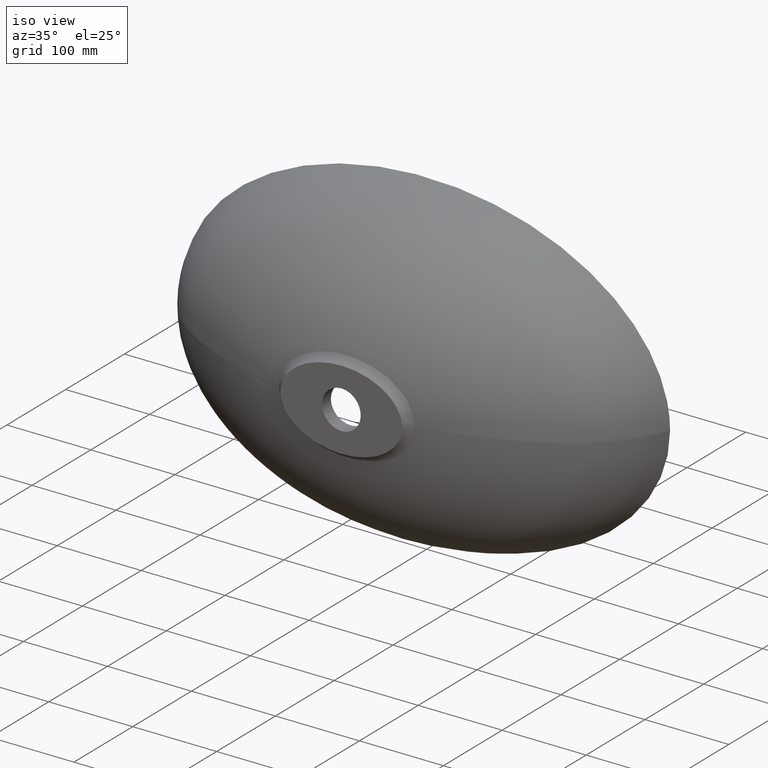
[diagram: clean part render]
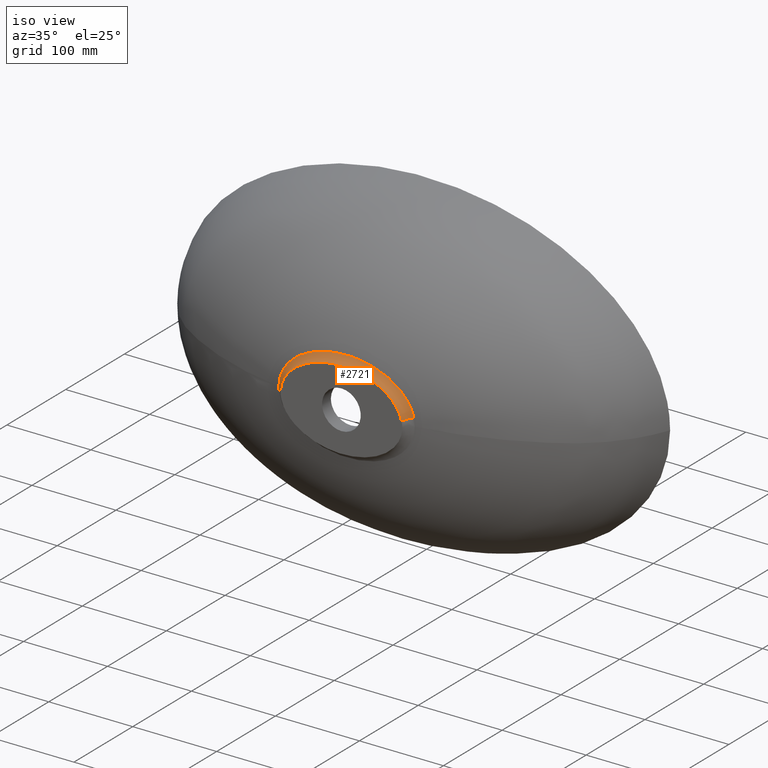
[diagram: same view with one face highlighted and labeled with its STEP entity id]
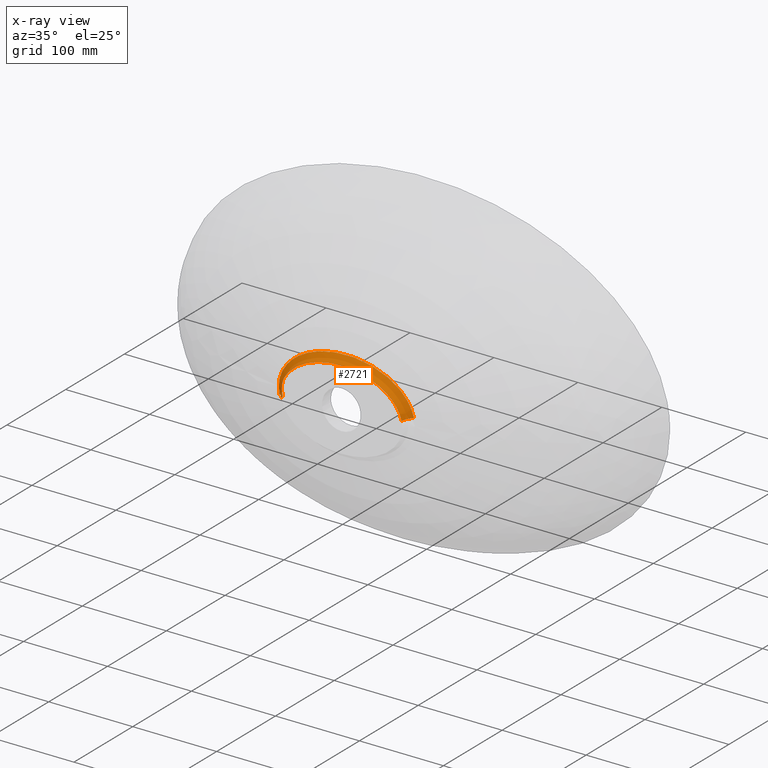
[diagram: x-ray of the same camera — body ghosted, the highlighted face saturated]
A machine part, iso view. The second image highlights one B-rep face of the part: STEP entity #2721.
The next image is the same camera in x-ray: the body ghosted, the highlighted face saturated — about 0% of this face is hidden behind the body in this view.
In plain terms, the highlighted face is a freeform B-spline surface patch.
Its self-contained STEP definition (entity closure, byte-faithful):
#111 = CARTESIAN_POINT ( 'NONE',  ( -57.76840219099133800, -144.9999999999990900, 28.74286792429593300 ) ) ;
#180 = CARTESIAN_POINT ( 'NONE',  ( -68.99613540702560500, -137.0384209324626300, 15.69049869848598900 ) ) ;
#248 = CARTESIAN_POINT ( 'NONE',  ( -21.48527641341252800, -135.3737776091023800, 53.27939157669379000 ) ) ;
#269 = CARTESIAN_POINT ( 'NONE',  ( -31.24889628013767200, -135.4003921669096000, 51.10134904427822300 ) ) ;
#273 = CARTESIAN_POINT ( 'NONE',  ( 66.74979826871857800, -145.0000000000129900, 18.62593711091315300 ) ) ;
#276 = CARTESIAN_POINT ( 'NONE',  ( -4.121749867141546500, -137.1522376728412400, 47.50875371204107700 ) ) ;
#281 = CARTESIAN_POINT ( 'NONE',  ( 0.09990136151083722800, -145.0000000000001100, 47.52025950288384600 ) ) ;
#287 = CARTESIAN_POINT ( 'NONE',  ( 35.66518881696328700, -135.4167835800382400, 49.75192479755023800 ) ) ;
#294 = CARTESIAN_POINT ( 'NONE',  ( 48.25351450540643600, -137.1074618079802600, 35.75339900553067500 ) ) ;
#306 = CARTESIAN_POINT ( 'NONE',  ( 67.36033692101638300, -135.6349497838440100, 30.87650840244744500 ) ) ;
#310 = CARTESIAN_POINT ( 'NONE',  ( 61.39534615579458400, -145.0000000000066200, 25.27441940821577400 ) ) ;
#314 = CARTESIAN_POINT ( 'NONE',  ( 61.71677162060830600, -137.0700529555253700, 25.47824916933039300 ) ) ;
#320 = CARTESIAN_POINT ( 'NONE',  ( 62.39568961167960000, -137.0676118115006000, 24.76867081057740100 ) ) ;
#323 = CARTESIAN_POINT ( 'NONE',  ( 68.14707202708785900, -135.6434693960308100, 30.05945386917327900 ) ) ;
#330 = CARTESIAN_POINT ( 'NONE',  ( 62.06352335316096000, -144.9999999999993700, 24.56526272325201200 ) ) ;
#332 = CARTESIAN_POINT ( 'NONE',  ( 63.34040246312178400, -145.0000000000005400, 23.12657197134214500 ) ) ;
#337 = CARTESIAN_POINT ( 'NONE',  ( 63.69435452095883200, -137.0627086431334500, 23.32791343366232800 ) ) ;
#340 = CARTESIAN_POINT ( 'NONE',  ( -6.666671140644870000, -135.3524187993806200, 55.03892607618850300 ) ) ;
#347 = CARTESIAN_POINT ( 'NONE',  ( 11.74099039740930600, -137.1500910783568700, 46.95027718676112000 ) ) ;
#351 = CARTESIAN_POINT ( 'NONE',  ( 8.546520953824769500, -144.9999999999999400, 47.18722668022632400 ) ) ;
#360 = CARTESIAN_POINT ( 'NONE',  ( 25.19142025147209200, -145.0000000000028700, 44.63444037198594600 ) ) ;
#364 = CARTESIAN_POINT ( 'NONE',  ( 14.90665943941628900, -137.1486254878783200, 46.56888937387519400 ) ) ;
#366 = CARTESIAN_POINT ( 'NONE',  ( 81.43937756057232500, -145.6869386754292500, 9.182762332374272400 ) ) ;
#371 = CARTESIAN_POINT ( 'NONE',  ( 25.24612161508172600, -137.1415035850226600, 44.73055361031743600 ) ) ;
#374 = CARTESIAN_POINT ( 'NONE',  ( 27.05120354373242700, -135.3871726466248300, 52.18340821861745800 ) ) ;
#378 = CARTESIAN_POINT ( 'NONE',  ( 50.01410201119635000, -137.1036213648565100, 34.71555418065338500 ) ) ;
#384 = CARTESIAN_POINT ( 'NONE',  ( 77.15437121182873200, -135.7592965919447700, 16.98060804809679400 ) ) ;
#391 = CARTESIAN_POINT ( 'NONE',  ( 69.66023135320317300, -135.6605098894223100, 28.39081299191124000 ) ) ;
#398 = CARTESIAN_POINT ( 'NONE',  ( 21.12290106580270400, -144.9999999999957400, 45.52672756669683500 ) ) ;
#401 = CARTESIAN_POINT ( 'NONE',  ( 21.16590476096972800, -137.1449450037066000, 45.61351044541775900 ) ) ;
#406 = CARTESIAN_POINT ( 'NONE',  ( 22.65981847253457100, -135.3756275762000000, 53.12627331495276900 ) ) ;
#407 = CARTESIAN_POINT ( 'NONE',  ( 15.92394870537510500, -145.0000000000010200, 46.34397247597171800 ) ) ;
#419 = CARTESIAN_POINT ( 'NONE',  ( 12.77710047153408200, -145.0000000000005100, 46.75941837057761300 ) ) ;
#430 = CARTESIAN_POINT ( 'NONE',  ( 54.09782905553639400, -135.5177364392129700, 41.29457163147324600 ) ) ;
#437 = CARTESIAN_POINT ( 'NONE',  ( 46.07839826312628900, -135.4670964381154200, 45.56039668120963200 ) ) ;
#442 = CARTESIAN_POINT ( 'NONE',  ( 49.82920067796058600, -144.9999999999995700, 34.53808522778889800 ) ) ;
#450 = CARTESIAN_POINT ( 'NONE',  ( 48.08363250697681900, -145.0000000000029800, 35.58190932183390500 ) ) ;
#460 = CARTESIAN_POINT ( 'NONE',  ( 37.09799775858699900, -137.1273880791220800, 41.08750420451662700 ) ) ;
#463 = CARTESIAN_POINT ( 'NONE',  ( 36.99802043483879300, -144.9999999999966500, 40.95605656732352200 ) ) ;
#467 = CARTESIAN_POINT ( 'NONE',  ( 33.12843299421837200, -144.9999999999970400, 42.34902868263954200 ) ) ;
#470 = CARTESIAN_POINT ( 'NONE',  ( 39.88801473062324000, -135.4348307378309100, 48.26413232427020700 ) ) ;
#474 = CARTESIAN_POINT ( 'NONE',  ( 15.95439265211875400, -137.1480605719148400, 46.42202284304537600 ) ) ;
#479 = CARTESIAN_POINT ( 'NONE',  ( 33.21135273579705700, -137.1327332404601700, 42.46765495444253700 ) ) ;
#482 = CARTESIAN_POINT ( 'NONE',  ( 63.23889223343226700, -135.5933905420252800, 34.74264865472555600 ) ) ;
#486 = CARTESIAN_POINT ( 'NONE',  ( 44.61196032396544100, -137.1146888673945600, 37.70245769547897700 ) ) ;
#489 = CARTESIAN_POINT ( 'NONE',  ( 52.14051688200908800, -135.5041454909421100, 42.44041579076185400 ) ) ;
#492 = CARTESIAN_POINT ( 'NONE',  ( 14.87852081885964300, -144.9999999999994000, 46.49245038729075200 ) ) ;
#498 = CARTESIAN_POINT ( 'NONE',  ( 48.11768247370221700, -135.4787473139366800, 44.58016454916995700 ) ) ;
#502 = CARTESIAN_POINT ( 'NONE',  ( 42.62422442911334000, -145.0000000000015900, 38.44909863477387500 ) ) ;
#507 = CARTESIAN_POINT ( 'NONE',  ( 42.75523717256426400, -137.1180323148016400, 38.60100233708259100 ) ) ;
#510 = CARTESIAN_POINT ( 'NONE',  ( 44.46901557833611900, -144.9999999999969300, 37.54388588072519900 ) ) ;
#513 = CARTESIAN_POINT ( 'NONE',  ( 59.61269964118994100, -137.0772770510430400, 27.55549617697827400 ) ) ;
#528 = CARTESIAN_POINT ( 'NONE',  ( 59.71341227963473800, -135.5619325043917600, 37.53551406600994500 ) ) ;
#533 = CARTESIAN_POINT ( 'NONE',  ( 75.49057484280570000, -135.7351685703401600, 20.21074994673590200 ) ) ;
#535 = CARTESIAN_POINT ( 'NONE',  ( 63.95099727483785300, -144.9999999999975800, 22.39514452345439100 ) ) ;
#538 = CARTESIAN_POINT ( 'NONE',  ( 72.48576815120192400, -135.6945327159070000, 24.91615383596656800 ) ) ;
#541 = CARTESIAN_POINT ( 'NONE',  ( 73.76652439366057500, -135.7113243982844300, 23.08839513003595200 ) ) ;
#546 = CARTESIAN_POINT ( 'NONE',  ( 55.01888580714810900, -137.0909848404254800, 31.34388147087616600 ) ) ;
#552 = CARTESIAN_POINT ( 'NONE',  ( 59.32234575477888000, -144.9999999999866100, 27.35230500167262900 ) ) ;
#555 = CARTESIAN_POINT ( 'NONE',  ( 11.71941556397217200, -145.0000000000000000, 46.87805733802457600 ) ) ;
#562 = CARTESIAN_POINT ( 'NONE',  ( 64.93419885008785300, -135.6097045548670500, 33.25725369230711700 ) ) ;
#571 = CARTESIAN_POINT ( 'NONE',  ( 2.211533396561068200, -137.1524479306425500, 47.56329700129258200 ) ) ;
#576 = CARTESIAN_POINT ( 'NONE',  ( 64.31597475023309600, -137.0602396946318300, 22.59487292797777500 ) ) ;
#579 = CARTESIAN_POINT ( 'NONE',  ( 70.38869316036340300, -135.6690550233371900, 27.53724240036149600 ) ) ;
#584 = ORIENTED_EDGE ( 'NONE', *, *, #1887, .F. ) ;
#596 = CARTESIAN_POINT ( 'NONE',  ( 0.1000518057343961600, -137.1525334788698000, 47.58532939791197000 ) ) ;
#599 = CARTESIAN_POINT ( 'NONE',  ( 0.1065809894754284600, -135.3501510732385500, 55.22470587094837700 ) ) ;
#601 = CARTESIAN_POINT ( 'NONE',  ( 2.207555259971072800, -145.0000000000004000, 47.49797454659859900 ) ) ;
#634 = CARTESIAN_POINT ( 'NONE',  ( -4.410086915435715400, -135.3511466946724200, 55.14330890330013800 ) ) ;
#644 = CARTESIAN_POINT ( 'NONE',  ( -4.114371745739130200, -144.9999999999998300, 47.44281049367496900 ) ) ;
#645 = CARTESIAN_POINT ( 'NONE',  ( -29.13462599215172200, -137.1375754273712500, 43.72105419199469600 ) ) ;
#647 = CARTESIAN_POINT ( 'NONE',  ( 15.94860411306009400, -135.3632647859719800, 54.14405870999588900 ) ) ;
#654 = CARTESIAN_POINT ( 'NONE',  ( 6.443208967689917800, -137.1518132251506800, 47.39856213349001700 ) ) ;
#661 = CARTESIAN_POINT ( 'NONE',  ( -72.79890085526578500, -137.0153834968648700, 4.080882337325611800 ) ) ;
#671 = CARTESIAN_POINT ( 'NONE',  ( 12.55916578924998100, -135.3583483338598200, 54.54978511833088800 ) ) ;
#674 = CARTESIAN_POINT ( 'NONE',  ( 13.69345512848410700, -135.3598594383389900, 54.42501813107443800 ) ) ;
#678 = CARTESIAN_POINT ( 'NONE',  ( -62.62017556073342900, -145.0000000000039200, 23.95238477200706800 ) ) ;
#681 = CARTESIAN_POINT ( 'NONE',  ( 6.431655752453267800, -144.9999999999995200, 47.33136920033978600 ) ) ;
#686 = CARTESIAN_POINT ( 'NONE',  ( -62.96164456238559400, -137.0655144754719300, 24.15509421114394000 ) ) ;
#689 = CARTESIAN_POINT ( 'NONE',  ( -68.80518333026654400, -135.6507723025110300, 29.35035465217109900 ) ) ;
#694 = CARTESIAN_POINT ( 'NONE',  ( -79.67653142309819700, -135.7984465443864500, 10.03422264215306100 ) ) ;
#701 = CARTESIAN_POINT ( 'NONE',  ( -26.87796804099421200, -135.3866703025716200, 52.22263476553023800 ) ) ;
#706 = CARTESIAN_POINT ( 'NONE',  ( 12.80081212961916000, -137.1496404531965000, 46.83294138787032800 ) ) ;
#713 = CARTESIAN_POINT ( 'NONE',  ( 58.12845237797819200, -137.0819368093295100, 28.86518707757346300 ) ) ;
#716 = CARTESIAN_POINT ( 'NONE',  ( -29.06718606459113400, -144.9999999999967300, 43.61463007572184100 ) ) ;
#726 = CARTESIAN_POINT ( 'NONE',  ( -6.232338540191421700, -137.1518590619179700, 47.41049961021170100 ) ) ;
#744 = CARTESIAN_POINT ( 'NONE',  ( -11.17582546208911300, -135.3564923579255000, 54.70306263061759500 ) ) ;
#750 = CARTESIAN_POINT ( 'NONE',  ( 67.17013184746981800, -137.0477657089770100, 18.81190929290014000 ) ) ;
#752 = CARTESIAN_POINT ( 'NONE',  ( -68.03186375252235500, -135.6422057685958600, 30.18077311231422400 ) ) ;
#766 = CARTESIAN_POINT ( 'NONE',  ( -6.221166425458688900, -144.9999999999975600, 47.34344174005081400 ) ) ;
#768 = CARTESIAN_POINT ( 'NONE',  ( 57.85770555789764600, -144.9999999999942600, 28.66426366953162500 ) ) ;
#773 = CARTESIAN_POINT ( 'NONE',  ( -34.94902072739170500, -145.0000000000015600, 41.64266995270596500 ) ) ;
#776 = CARTESIAN_POINT ( 'NONE',  ( 9.157833000549210600, -135.3544103123580600, 54.87481873316868100 ) ) ;
#781 = CARTESIAN_POINT ( 'NONE',  ( 54.78466617695458000, -145.0000000000056600, 31.15037394771098500 ) ) ;
#786 = CARTESIAN_POINT ( 'NONE',  ( 66.09631704198722000, -137.0527811043588400, 20.35618445214595300 ) ) ;
#789 = CARTESIAN_POINT ( 'NONE',  ( 57.88346106402418900, -135.5467318036427600, 38.84237895691737900 ) ) ;
#797 = CARTESIAN_POINT ( 'NONE',  ( 8.561973549080175200, -137.1512653808641200, 47.25602621116659900 ) ) ;
#799 = CARTESIAN_POINT ( 'NONE',  ( 2.366712186432741800, -135.3504399738079900, 55.20127388428414200 ) ) ;
#803 = CARTESIAN_POINT ( 'NONE',  ( 6.892496875850507200, -135.3525725626670600, 55.02622132101009100 ) ) ;
#806 = CARTESIAN_POINT ( 'NONE',  ( -12.55392870270445900, -137.1498088182506200, 46.87663505832102100 ) ) ;
#810 = CARTESIAN_POINT ( 'NONE',  ( -12.53073194424795700, -145.0000000000010800, 46.80359854605850200 ) ) ;
#813 = CARTESIAN_POINT ( 'NONE',  ( 65.69802103683534300, -145.0000000000047700, 20.16334837879882600 ) ) ;
#820 = CARTESIAN_POINT ( 'NONE',  ( -10.44837193669560600, -137.1506446162162500, 47.09444245859638300 ) ) ;
#824 = CARTESIAN_POINT ( 'NONE',  ( -10.42933884918677900, -145.0000000000023900, 47.02383066344897600 ) ) ;
#843 = CARTESIAN_POINT ( 'NONE',  ( -49.04621318694296400, -137.1056709649801100, 35.26907799750247800 ) ) ;
#854 = CARTESIAN_POINT ( 'NONE',  ( -52.04298545794692600, -135.5038046280865800, 42.46878736035632300 ) ) ;
#865 = CARTESIAN_POINT ( 'NONE',  ( -71.73329368483463500, -144.9999999999999700, -6.873038434622388100 ) ) ;
#882 = ORIENTED_EDGE ( 'NONE', *, *, #2268, .F. ) ;
#898 = CIRCLE ( 'NONE', #1052, 10.00000000000000500 ) ;
#954 = CARTESIAN_POINT ( 'NONE',  ( 72.25389959212404300, -137.0190813799477500, 7.062946733962262700 ) ) ;
#970 = VERTEX_POINT ( 'NONE', #865 ) ;
#1052 = AXIS2_PLACEMENT_3D ( 'NONE', #2428, #2436, #2439 ) ;
#1143 = CARTESIAN_POINT ( 'NONE',  ( 53.39379857310278500, -137.0954451165230500, 32.51264144945951500 ) ) ;
#1276 = VERTEX_POINT ( 'NONE', #4074 ) ;
#1573 = CARTESIAN_POINT ( 'NONE',  ( 53.17618313076883400, -145.0000000000003400, 32.32444552505160800 ) ) ;
#1589 = CARTESIAN_POINT ( 'NONE',  ( 17.07127711421647500, -135.3651609275712800, 53.98771005474932800 ) ) ;
#1613 = CARTESIAN_POINT ( 'NONE',  ( -13.42839688809731800, -135.3592935911469500, 54.47159828321777300 ) ) ;
#1616 = CARTESIAN_POINT ( 'NONE',  ( -15.67480632503812100, -144.9999999999994000, 46.38030572073384400 ) ) ;
#1622 = CARTESIAN_POINT ( 'NONE',  ( -16.75374423364548800, -137.1476024638806200, 46.30304010040383400 ) ) ;
#1624 = CARTESIAN_POINT ( 'NONE',  ( -48.86955301227331500, -145.0000000000049200, 35.09475737673157900 ) ) ;
#1628 = CARTESIAN_POINT ( 'NONE',  ( -78.47051516151255200, -135.7793342733631600, 13.82736909765325400 ) ) ;
#1631 = CARTESIAN_POINT ( 'NONE',  ( -51.44655965377860000, -144.9999999999900200, 33.50445721190875000 ) ) ;
#1634 = CARTESIAN_POINT ( 'NONE',  ( -15.70469430696221000, -137.1481987628592100, 46.45796261407056000 ) ) ;
#1636 = CARTESIAN_POINT ( 'NONE',  ( -16.80370532515179600, -135.3646971722792200, 54.02596585011420400 ) ) ;
#1640 = CARTESIAN_POINT ( 'NONE',  ( -16.72148945232525100, -144.9999999999992300, 46.22368933529897800 ) ) ;
#1659 = CARTESIAN_POINT ( 'NONE',  ( -71.95918359591078700, -145.0000000000001400, 5.789198590374450500 ) ) ;
#1665 = CARTESIAN_POINT ( 'NONE',  ( -56.25694099423428400, -145.0000000000029300, 30.00067822853981500 ) ) ;
#1670 = CARTESIAN_POINT ( 'NONE',  ( -57.79073854076424500, -135.5460358381508600, 38.90774001982255500 ) ) ;
#1672 = CARTESIAN_POINT ( 'NONE',  ( -79.94742383906394400, -135.8028739377317900, 8.955026773025196000 ) ) ;
#1676 = CARTESIAN_POINT ( 'NONE',  ( -72.59191867514501000, -137.0168170035365200, 5.418255914297130700 ) ) ;
#1684 = VERTEX_POINT ( 'NONE', #3879 ) ;
#1686 = CARTESIAN_POINT ( 'NONE',  ( -59.91786361091939700, -145.0000000000004000, 26.75118590268257200 ) ) ;
#1691 = CARTESIAN_POINT ( 'NONE',  ( -63.13560287078570400, -135.5924211532690700, 34.83243497363589100 ) ) ;
#1694 = CARTESIAN_POINT ( 'NONE',  ( -58.03798608994757300, -137.0822197350747700, 28.94367711202292900 ) ) ;
#1709 = CARTESIAN_POINT ( 'NONE',  ( -72.03835568033028400, -145.0000000000009100, 5.351301315930972400 ) ) ;
#1757 = CARTESIAN_POINT ( 'NONE',  ( -74.26593098847040200, -135.7182414520587200, 22.24729733001714700 ) ) ;
#1778 = CARTESIAN_POINT ( 'NONE',  ( -72.40134696848370800, -135.6935296529193800, 25.03537920808817300 ) ) ;
#1802 = CARTESIAN_POINT ( 'NONE',  ( -67.15526561834850800, -145.0000000000068800, 17.92783064265029900 ) ) ;
#1805 = CARTESIAN_POINT ( 'NONE',  ( -67.58461164200350900, -137.0456587130861100, 18.10982554437668700 ) ) ;
#1811 = CARTESIAN_POINT ( 'NONE',  ( -67.63529021982320400, -144.9999999999932400, 17.13598556286486400 ) ) ;
#1885 = CARTESIAN_POINT ( 'NONE',  ( -72.27793645350441000, -137.0189227042124300, -6.957927816702808200 ) ) ;
#1887 = EDGE_CURVE ( 'NONE', #2734, #970, #3273, .T. ) ;
#1889 = CARTESIAN_POINT ( 'NONE',  ( -80.98486502888488300, -135.8204558886682500, -6.271195362309190600E-015 ) ) ;
#1901 = CARTESIAN_POINT ( 'NONE',  ( -80.98486502888489700, -135.8204558886682200, -0.7305893018944165100 ) ) ;
#1904 = DIRECTION ( 'NONE',  ( 0.9753172566232469800, 0.0000000000000000000, 0.2208081722511718300 ) ) ;
#1916 = DIRECTION ( 'NONE',  ( -0.2208059068403441800, 0.004529808041615249200, 0.9753072502260606800 ) ) ;
#1929 = CARTESIAN_POINT ( 'NONE',  ( -72.17867248968366300, -144.9999999999999400, 5.620241344210579200 ) ) ;
#1944 = CARTESIAN_POINT ( 'NONE',  ( 79.96691000048315300, -135.8032148546850500, 8.803496304712675500 ) ) ;
#1949 = CARTESIAN_POINT ( 'NONE',  ( 79.47795225766611800, -135.7951858222207300, 10.91107013331562000 ) ) ;
#1951 = CARTESIAN_POINT ( 'NONE',  ( 78.82239475428536900, -135.7846994338252100, 12.96908146051303700 ) ) ;
#1963 = CARTESIAN_POINT ( 'NONE',  ( 77.60173179579074100, -135.7660212982976000, 15.98549766236855700 ) ) ;
#1972 = CARTESIAN_POINT ( 'NONE',  ( 76.18397155422732700, -135.7450763935712000, 18.94123709381277700 ) ) ;
#1975 = CARTESIAN_POINT ( 'NONE',  ( 75.66566302242603100, -135.7376503099897900, 19.89755117446056000 ) ) ;
#1982 = CARTESIAN_POINT ( 'NONE',  ( 74.01868576630664600, -135.7147193511775100, 22.69976737698730300 ) ) ;
#1985 = CARTESIAN_POINT ( 'NONE',  ( 72.79829106806148800, -135.6985728080364900, 24.47917962132514800 ) ) ;
#1989 = CARTESIAN_POINT ( 'NONE',  ( 70.14127813175309700, -135.6658669900221000, 27.88127903758128700 ) ) ;
#1992 = CARTESIAN_POINT ( 'NONE',  ( 68.70455607739792500, -135.6493281722974900, 29.50389114815116900 ) ) ;
#1996 = CARTESIAN_POINT ( 'NONE',  ( -80.56881955352948000, -135.8132513019682200, 5.658133147558950200 ) ) ;
#2001 = CARTESIAN_POINT ( 'NONE',  ( 65.63403373791544500, -135.6167258982188500, 32.60627510861668600 ) ) ;
#2003 = CARTESIAN_POINT ( 'NONE',  ( 64.02397083755025200, -135.6008755717763800, 34.06225874388932300 ) ) ;
#2008 = CARTESIAN_POINT ( 'NONE',  ( 60.68295458959816100, -135.5703024107549500, 36.80177609976036700 ) ) ;
#2010 = CARTESIAN_POINT ( 'NONE',  ( 58.95032884953526800, -135.5555618943425000, 38.08652368096820600 ) ) ;
#2013 = CARTESIAN_POINT ( 'NONE',  ( 55.37249688975045100, -135.5271711065102200, 40.50194791150887900 ) ) ;
#2020 = ORIENTED_EDGE ( 'NONE', *, *, #3224, .T. ) ;
#2021 = CARTESIAN_POINT ( 'NONE',  ( 53.52700009593053200, -135.5137261320370800, 41.63222920127939400 ) ) ;
#2024 = CARTESIAN_POINT ( 'NONE',  ( -72.73626015478160400, -137.0158222674493500, 4.527567219800299200 ) ) ;
#2029 = CARTESIAN_POINT ( 'NONE',  ( 50.68152597770645700, -135.4948696613201400, 43.22196663456215800 ) ) ;
#2032 = CARTESIAN_POINT ( 'NONE',  ( 49.71874838870440500, -135.4887819336169100, 43.73487669425036000 ) ) ;
#2034 = ORIENTED_EDGE ( 'NONE', *, *, #2275, .F. ) ;
#2037 = CARTESIAN_POINT ( 'NONE',  ( 47.78504977462609600, -135.4770977492137000, 44.71851840409524200 ) ) ;
#2043 = CARTESIAN_POINT ( 'NONE',  ( -72.17852184144757600, -144.9999999999990100, 4.471307150792936700 ) ) ;
#2046 = CARTESIAN_POINT ( 'NONE',  ( 46.81230591226378100, -135.4714883278352300, 45.19033687509909200 ) ) ;
#2048 = CARTESIAN_POINT ( 'NONE',  ( 41.92092630031387300, -135.4445175683105700, 47.45556752024580800 ) ) ;
#2055 = CARTESIAN_POINT ( 'NONE',  ( 37.92025836644322800, -135.4262539850617800, 48.97061277464857900 ) ) ;
#2063 = CARTESIAN_POINT ( 'NONE',  ( -80.28650138764105300, -135.8084987909655600, 7.315362306330496400 ) ) ;
#2068 = CARTESIAN_POINT ( 'NONE',  ( 29.76947982872877700, -135.3955984617361100, 51.49358927293430800 ) ) ;
#2071 = CARTESIAN_POINT ( 'NONE',  ( -72.51040811559919100, -137.0173716711609300, 5.861396339571089500 ) ) ;
#2072 = CARTESIAN_POINT ( 'NONE',  ( 19.29025217667165000, -135.3691306423288600, 53.66067803368174800 ) ) ;
#2077 = CARTESIAN_POINT ( 'NONE',  ( 17.16339364062125100, -135.3651461819070500, 53.98885832947634400 ) ) ;
#2079 = CARTESIAN_POINT ( 'NONE',  ( -80.38830453400864000, -135.8102040885874300, 6.765325423287585200 ) ) ;
#2082 = CARTESIAN_POINT ( 'NONE',  ( 13.94772737577213900, -135.3602230066388500, 54.39501099007916500 ) ) ;
#2084 = CARTESIAN_POINT ( 'NONE',  ( 12.87016741498782400, -135.3587557736701700, 54.51614864576047400 ) ) ;
#2093 = CARTESIAN_POINT ( 'NONE',  ( -71.73329368483463500, -144.9999999999999700, -6.873038434622388100 ) ) ;
#2096 = CARTESIAN_POINT ( 'NONE',  ( -72.05680605547725300, -144.9999999999999700, -5.424330308448870300 ) ) ;
#2100 = CARTESIAN_POINT ( 'NONE',  ( -72.31114801642455300, -144.9999999999999700, -3.756334893012389200 ) ) ;
#2101 = CARTESIAN_POINT ( 'NONE',  ( -72.47446810728394000, -145.0000000000000000, -1.458451061544804700 ) ) ;
#2105 = CARTESIAN_POINT ( 'NONE',  ( -72.50000000000001400, -144.9999999999999700, -0.6250504549477823300 ) ) ;
#2107 = CARTESIAN_POINT ( 'NONE',  ( -72.50000000000001400, -144.9999999999999700, -4.228388472693467300E-015 ) ) ;
#2112 = CARTESIAN_POINT ( 'NONE',  ( -72.50000000000001400, -144.9999999999999700, 0.6250504549477627900 ) ) ;
#2114 = CARTESIAN_POINT ( 'NONE',  ( -72.47446810728394000, -144.9999999999999700, 1.458451061544785200 ) ) ;
#2120 = CARTESIAN_POINT ( 'NONE',  ( -70.31492215243579800, -144.9999999999999700, 13.26490636796133100 ) ) ;
#2127 = CARTESIAN_POINT ( 'NONE',  ( -63.55359882152487900, -145.0000000000000000, 23.95946813404481900 ) ) ;
#2129 = CARTESIAN_POINT ( 'NONE',  ( -51.86703411855977200, -144.9999999999999700, 33.98184993974604900 ) ) ;
#2134 = CARTESIAN_POINT ( 'NONE',  ( -36.56971452038421700, -144.9999999999999700, 41.63856474513698900 ) ) ;
#2153 = CARTESIAN_POINT ( 'NONE',  ( -19.08048757208981900, -144.9999999999999700, 46.38481388136756300 ) ) ;
#2162 = CARTESIAN_POINT ( 'NONE',  ( -7.775762455794477100E-015, -145.0000000000000300, 48.05759305931623300 ) ) ;
#2167 = CARTESIAN_POINT ( 'NONE',  ( 19.08048757208980100, -145.0000000000000000, 46.38481388136754200 ) ) ;
#2170 = CARTESIAN_POINT ( 'NONE',  ( 36.56971452038418800, -145.0000000000000000, 41.63856474513701000 ) ) ;
#2183 = CARTESIAN_POINT ( 'NONE',  ( 63.55359882152489300, -145.0000000000000000, 23.95946813404481500 ) ) ;
#2186 = CARTESIAN_POINT ( 'NONE',  ( -17.92821497608740700, -135.3666993953940500, 53.86097974672017600 ) ) ;
#2194 = CARTESIAN_POINT ( 'NONE',  ( -18.81141491352032700, -145.0000000000006800, 45.87866876268231700 ) ) ;
#2198 = CARTESIAN_POINT ( 'NONE',  ( -79.51841468421940800, -135.7957856362387500, 10.76400708855111300 ) ) ;
#2205 = CARTESIAN_POINT ( 'NONE',  ( -80.05903835889732500, -135.8046672048289500, 8.670008169746934000 ) ) ;
#2219 = CARTESIAN_POINT ( 'NONE',  ( -80.61118488744614300, -135.8139578888061300, 5.444219785449961400 ) ) ;
#2231 = EDGE_LOOP ( 'NONE', ( #2034, #882, #3846, #2020, #584 ) ) ;
#2234 = CARTESIAN_POINT ( 'NONE',  ( -80.32295478461232100, -135.8090692846802500, -7.246377562815322200 ) ) ;
#2268 = EDGE_CURVE ( 'NONE', #1684, #1276, #2884, .T. ) ;
#2275 = EDGE_CURVE ( 'NONE', #1276, #2734, #2896, .T. ) ;
#2321 = CARTESIAN_POINT ( 'NONE',  ( -68.07535093058629600, -137.0432087640080300, 17.31342038687655100 ) ) ;
#2345 = CARTESIAN_POINT ( 'NONE',  ( -74.85572703337305700, -135.7263175215929300, 21.29632331132894800 ) ) ;
#2353 = CARTESIAN_POINT ( 'NONE',  ( -68.53520647575145100, -145.0000000000066800, 15.52363473816578900 ) ) ;
#2360 = CARTESIAN_POINT ( 'NONE',  ( -47.99316968885190700, -145.0000000000047200, 35.60945238728415100 ) ) ;
#2392 = CARTESIAN_POINT ( 'NONE',  ( -20.17593419313143600, -135.3711245941956600, 53.49712057077155000 ) ) ;
#2399 = CARTESIAN_POINT ( 'NONE',  ( -80.75105171078924100, -135.8163640141263200, 4.357863817847293900 ) ) ;
#2402 = CARTESIAN_POINT ( 'NONE',  ( -19.85465942424763600, -145.0000000000009400, 45.69018839283941000 ) ) ;
#2408 = CARTESIAN_POINT ( 'NONE',  ( -19.89453010996479400, -137.1455650465723300, 45.77525303570712400 ) ) ;
#2424 = CARTESIAN_POINT ( 'NONE',  ( -21.29918591625716900, -135.3735500599008800, 53.29816005240505900 ) ) ;
#2428 = CARTESIAN_POINT ( 'NONE',  ( -81.46981263727092000, -145.6875634670735500, -9.047309615408128300 ) ) ;
#2436 = DIRECTION ( 'NONE',  ( 0.2176399720046967600, 0.004470874794510308800, -0.9760188798708592200 ) ) ;
#2439 = DIRECTION ( 'NONE',  ( -0.9760286347018486400, 0.0000000000000000000, -0.2176421472096924400 ) ) ;
#2487 = AXIS2_PLACEMENT_3D ( 'NONE', #366, #1916, #1904 ) ;
#2500 = CARTESIAN_POINT ( 'NONE',  ( -80.93760494491044700, -135.8196082221406300, 2.184275810298906200 ) ) ;
#2550 = CARTESIAN_POINT ( 'NONE',  ( 51.86703411855975800, -145.0000000000000000, 33.98184993974606300 ) ) ;
#2553 = CARTESIAN_POINT ( 'NONE',  ( -72.39284845112752000, -144.9999999999952000, 2.712265280564098500 ) ) ;
#2562 = CARTESIAN_POINT ( 'NONE',  ( -18.84865560723831700, -137.1462859902961200, 45.96172435461861000 ) ) ;
#2566 = CARTESIAN_POINT ( 'NONE',  ( -75.96772842631739300, -135.7419523798848500, 19.34816899896723500 ) ) ;
#2569 = CARTESIAN_POINT ( 'NONE',  ( -69.42750600993053900, -137.0360752921958500, 14.86086361371338800 ) ) ;
#2574 = CARTESIAN_POINT ( 'NONE',  ( -80.98486502888488300, -135.8204558886683100, 1.093951033919499800 ) ) ;
#2581 = CARTESIAN_POINT ( 'NONE',  ( -76.49158438301354600, -135.7495360520404700, 18.34718231803115500 ) ) ;
#2596 = CARTESIAN_POINT ( 'NONE',  ( -73.02352698376786600, -137.0137699220188400, 1.861215665683658700 ) ) ;
#2598 = CARTESIAN_POINT ( 'NONE',  ( -37.65725090687808300, -135.4259307746170300, 48.99528625506255300 ) ) ;
#2605 = CARTESIAN_POINT ( 'NONE',  ( -36.98055881772248200, -137.1272980285081400, 41.05250333938317900 ) ) ;
#2609 = CARTESIAN_POINT ( 'NONE',  ( -39.76856919280900400, -135.4352715945582000, 48.22227727652658300 ) ) ;
#2618 = CARTESIAN_POINT ( 'NONE',  ( -36.88075438216122800, -144.9999999999958500, 40.92087156096675200 ) ) ;
#2636 = CARTESIAN_POINT ( 'NONE',  ( -40.68217084408804100, -145.0000000000040600, 39.34185244700052700 ) ) ;
#2641 = CARTESIAN_POINT ( 'NONE',  ( -77.93638964923155800, -135.7709188747107000, 15.30866552082897200 ) ) ;
#2680 = EDGE_CURVE ( 'NONE', #2720, #1684, #3242, .T. ) ;
#2705 = CARTESIAN_POINT ( 'NONE',  ( -72.45731339856294500, -145.0000000000012800, 1.837886792860141400 ) ) ;
#2720 = VERTEX_POINT ( 'NONE', #3967 ) ;
#2721 = ADVANCED_FACE ( 'NONE', ( #3354 ), #3748, .F. ) ;
#2729 = CARTESIAN_POINT ( 'NONE',  ( -68.95641339873243700, -144.9999999999952000, 14.70003403012505700 ) ) ;
#2733 = CARTESIAN_POINT ( 'NONE',  ( -80.92938180836488000, -135.8194706715121600, 2.332010129523101900 ) ) ;
#2734 = VERTEX_POINT ( 'NONE', #3980 ) ;
#2767 = CARTESIAN_POINT ( 'NONE',  ( -80.84567333717197400, -135.8179956073933300, 3.438831398605018700 ) ) ;
#2773 = CARTESIAN_POINT ( 'NONE',  ( -72.51219409936008700, -144.9999999999986600, 0.09601682197721013400 ) ) ;
#2776 = CARTESIAN_POINT ( 'NONE',  ( -72.95706957935519200, -137.0142621869373400, 2.746659895562573600 ) ) ;
#2795 = CARTESIAN_POINT ( 'NONE',  ( -80.98486502888488300, -135.8204558886682500, -6.271195362309190600E-015 ) ) ;
#2797 = CARTESIAN_POINT ( 'NONE',  ( -73.07017610508749800, -137.0134236602343700, -0.7810180362763097200 ) ) ;
#2798 = CARTESIAN_POINT ( 'NONE',  ( -70.11232466976140600, -145.0000000000095200, 12.21353309745182300 ) ) ;
#2802 = CARTESIAN_POINT ( 'NONE',  ( -70.61238275411486100, -137.0294055956242400, 12.35395071269968200 ) ) ;
#2803 = CARTESIAN_POINT ( 'NONE',  ( -64.49205350611210000, -144.9999999999920100, 21.76813595942942200 ) ) ;
#2808 = CARTESIAN_POINT ( 'NONE',  ( -45.29913141537631600, -144.9999999999996300, 37.09174050457226500 ) ) ;
#2810 = CARTESIAN_POINT ( 'NONE',  ( -40.80168959570649200, -137.1213516061150700, 39.48679071601447500 ) ) ;
#2815 = CARTESIAN_POINT ( 'NONE',  ( -43.93867253818004300, -135.4556120917077100, 46.52438132227739200 ) ) ;
#2828 = CARTESIAN_POINT ( 'NONE',  ( -64.86676429044486300, -137.0581143187550600, 21.96642085254100600 ) ) ;
#2853 = CARTESIAN_POINT ( 'NONE',  ( -70.74354337825198500, -145.0000000000019900, 10.53044942783273900 ) ) ;
#2884 = B_SPLINE_CURVE_WITH_KNOTS ( 'NONE', 3,
 ( #2795, #2574, #2500, #2399, #2219, #2205, #2198, #1628, #3734, #3729, #3727, #3722, #3714, #3713, #3708, #3706, #3699, #3693, #3680, #3678, #3671, #3669, #3662, #3646, #3644, #3641, #3632, #3616, #3604, #3621, #3607, #248, #3592, #3594, #3733, #3752, #3781, #3796, #3806, #2084, #2082, #2077, #2072, #3601, #2068, #2055, #2048, #2046, #2037, #2032, #2029, #2021, #2013, #2010, #2008, #2003, #2001, #1992, #1989, #1985, #1982, #1975, #1972, #384, #1963, #1951, #1949, #1944 ),
 .UNSPECIFIED., .F., .F.,
 ( 4, 2, 2, 2, 2, 2, 2, 2, 2, 2, 2, 2, 2, 2, 2, 2, 2, 2, 2, 2, 2, 2, 2, 2, 2, 2, 2, 2, 2, 2, 2, 2, 2, 4 ),
 ( 0.0000000000000000000, 0.003272237730781780500, 0.006544475461563560900, 0.01308895092312712200, 0.01636118865390890800, 0.01963342638469069500, 0.02617790184625427800, 0.03272237730781786500, 0.03599461503859964500, 0.03926685276938141800, 0.05235580369250851500, 0.05562804142329028800, 0.05890027915407205400, 0.06544475461563557800, 0.07853370553876264100, 0.08507818100032618600, 0.09162265646188971800, 0.1047116073850167800, 0.1178005583081438400, 0.1210727960389256000, 0.1243450337697073500, 0.1308895092312708800, 0.1439784601543979100, 0.1570674110775249500, 0.1603396488083067300, 0.1636118865390885100, 0.1701563620006520900, 0.1767008374622156800, 0.1832453129237792700, 0.1897897883853428600, 0.1963342638469064400, 0.1996065015776882200, 0.2028787393084700000, 0.2094232147700335900 ),
 .UNSPECIFIED. ) ;
#2896 = CIRCLE ( 'NONE', #2487, 9.999999999999998200 ) ;
#2918 = CARTESIAN_POINT ( 'NONE',  ( -72.50256213901434400, -145.0000000000091800, -0.7712317737368422600 ) ) ;
#2961 = CARTESIAN_POINT ( 'NONE',  ( -81.00070018307208400, -135.8207353643618400, 0.1226422507580051400 ) ) ;
#2966 = CARTESIAN_POINT ( 'NONE',  ( 79.96691000048535600, -135.8032148546850200, 8.803496304702839800 ) ) ;
#2972 = CARTESIAN_POINT ( 'NONE',  ( -73.08011148475934200, -137.0133458588051100, 0.09721980700072076200 ) ) ;
#2983 = CARTESIAN_POINT ( 'NONE',  ( -71.26041941507932600, -137.0254416426783500, 10.65505570596416400 ) ) ;
#3002 = CARTESIAN_POINT ( 'NONE',  ( -78.73508858146820400, -135.7833759619980500, 13.23134713562662200 ) ) ;
#3009 = CARTESIAN_POINT ( 'NONE',  ( -71.48314186346848900, -144.9999999999989500, 7.960805360759231100 ) ) ;
#3011 = CARTESIAN_POINT ( 'NONE',  ( -72.02058371404440600, -137.0206194020520600, 8.058096704195316200 ) ) ;
#3024 = CARTESIAN_POINT ( 'NONE',  ( -80.98813126048227700, -135.8205067881990000, -0.9798281803118135100 ) ) ;
#3026 = CARTESIAN_POINT ( 'NONE',  ( -72.36335636401986400, -144.9999999999815300, -3.379395052617221000 ) ) ;
#3031 = CARTESIAN_POINT ( 'NONE',  ( -72.92667401768319700, -137.0144840398231200, -3.422197606847805900 ) ) ;
#3058 = CARTESIAN_POINT ( 'NONE',  ( -42.55147641690471300, -145.0000000000006000, 38.48491569013620500 ) ) ;
#3066 = CARTESIAN_POINT ( 'NONE',  ( -71.03166331491269100, -135.6764184096323300, 26.80783935327447100 ) ) ;
#3068 = CARTESIAN_POINT ( 'NONE',  ( -65.62745928346845400, -144.9999999999861300, 20.26363576479782200 ) ) ;
#3075 = CARTESIAN_POINT ( 'NONE',  ( -45.99755801596181500, -135.4666245582384400, 45.59966093330756100 ) ) ;
#3083 = CARTESIAN_POINT ( 'NONE',  ( -66.02441305044500600, -137.0530781745072500, 20.45691084627287300 ) ) ;
#3148 = CARTESIAN_POINT ( 'NONE',  ( -72.12428986626149200, -145.0000000000098100, -5.122133688037450000 ) ) ;
#3224 = EDGE_CURVE ( 'NONE', #2720, #970, #898, .T. ) ;
#3242 = B_SPLINE_CURVE_WITH_KNOTS ( 'NONE', 3,
 ( #3464, #2234, #3963, #3952, #3635, #3602, #1901, #1889 ),
 .UNSPECIFIED., .F., .F.,
 ( 4, 2, 2, 4 ),
 ( 0.4277171206868785000, 0.4320878133508799800, 0.4342731596828807200, 0.4364585060148814500 ),
 .UNSPECIFIED. ) ;
#3243 = CARTESIAN_POINT ( 'NONE',  ( -72.68029764329831700, -137.0162636395798800, -5.186557565996140300 ) ) ;
#3253 = CARTESIAN_POINT ( 'NONE',  ( -80.49755108412838900, -135.8119403353863100, -6.482315417392680200 ) ) ;
#3261 = CARTESIAN_POINT ( 'NONE',  ( -45.44802603372135500, -137.1130235361046100, 37.25341864250969300 ) ) ;
#3273 = B_SPLINE_CURVE_WITH_KNOTS ( 'NONE', 3,
 ( #3737, #3899, #3740, #2183, #2550, #2170, #2167, #2162, #2153, #2134, #2129, #2127, #2120, #1929, #2114, #2112, #2107, #2105, #2101, #2100, #2096, #2093 ),
 .UNSPECIFIED., .F., .F.,
 ( 4, 1, 1, 1, 1, 1, 1, 1, 1, 1, 1, 1, 1, 1, 3, 1, 1, 4 ),
 ( 0.5233563372860677900, 0.5416666666666667400, 0.5833333333333332600, 0.6250000000000000000, 0.6666666666666667400, 0.7083333333333332600, 0.7500000000009738900, 0.7916666666666666300, 0.8333333333333333700, 0.8750000000000000000, 0.9166666666666666300, 0.9583333333333333700, 0.9916666666666667000, 0.9937500000000000200, 1.000000000000000000, 1.006250000000000100, 1.008333333333333300, 1.023005762698632200 ),
 .UNSPECIFIED. ) ;
#3289 = CARTESIAN_POINT ( 'NONE',  ( -42.68201170794976900, -137.1181681313272000, 38.63656096413959800 ) ) ;
#3297 = CARTESIAN_POINT ( 'NONE',  ( -49.04182084668460800, -135.4846026317159200, 44.08686614017448600 ) ) ;
#3299 = CARTESIAN_POINT ( 'NONE',  ( -46.20754162551934700, -144.9999999999952300, 36.60823778197189400 ) ) ;
#3311 = CARTESIAN_POINT ( 'NONE',  ( -46.36302025965776600, -137.1112424502101400, 36.77317820120583000 ) ) ;
#3327 = CARTESIAN_POINT ( 'NONE',  ( -48.16253152903055200, -137.1075651228424900, 35.78072239372658500 ) ) ;
#3354 = FACE_OUTER_BOUND ( 'NONE', #2231, .T. ) ;
#3464 = CARTESIAN_POINT ( 'NONE',  ( -79.99682469062477700, -135.8037064216981900, -8.673576534695147400 ) ) ;
#3471 = CARTESIAN_POINT ( 'NONE',  ( -71.73329368483452100, -144.9999999999999700, -6.873038434622353400 ) ) ;
#3487 = CARTESIAN_POINT ( 'NONE',  ( -80.80746407228679100, -135.8173286402139300, -4.284358261999021700 ) ) ;
#3513 = CARTESIAN_POINT ( 'NONE',  ( -60.21700146006711000, -137.0751903109172400, 26.95470414412121900 ) ) ;
#3518 = CARTESIAN_POINT ( 'NONE',  ( -60.61467191005575500, -144.9999999999978700, 26.06975989734434400 ) ) ;
#3520 = CARTESIAN_POINT ( 'NONE',  ( -50.05137415671858700, -135.4908535073826100, 43.56036791427300900 ) ) ;
#3524 = CARTESIAN_POINT ( 'NONE',  ( -65.63166344971179500, -135.6169952453553000, 32.56791223422575100 ) ) ;
#3531 = CARTESIAN_POINT ( 'NONE',  ( -53.02409750463718300, -135.5104973000311500, 41.90435547682577800 ) ) ;
#3534 = CARTESIAN_POINT ( 'NONE',  ( -72.23844043006636200, -137.0191939855557500, 7.184455539322785400 ) ) ;
#3537 = CARTESIAN_POINT ( 'NONE',  ( -53.09507228086899000, -144.9999999999969900, 32.38226653764535000 ) ) ;
#3539 = CARTESIAN_POINT ( 'NONE',  ( -60.92408139247281400, -137.0728104114647900, 26.27363151416599200 ) ) ;
#3548 = CARTESIAN_POINT ( 'NONE',  ( -66.44514314017681000, -135.6253196716467600, 31.78930676017655800 ) ) ;
#3556 = CARTESIAN_POINT ( 'NONE',  ( -72.23933322628917600, -145.0000000000023600, 4.030057598564194000 ) ) ;
#3559 = CARTESIAN_POINT ( 'NONE',  ( -80.64729618630282500, -135.8145892659788100, 5.102039747482563400 ) ) ;
#3568 = CARTESIAN_POINT ( 'NONE',  ( -71.69492693023619300, -144.9999999999996300, 7.096923429634538000 ) ) ;
#3577 = CARTESIAN_POINT ( 'NONE',  ( -61.96585548902467600, -145.0000000000020500, 24.67050327103428800 ) ) ;
#3579 = CARTESIAN_POINT ( 'NONE',  ( -62.29642298146894300, -137.0679732028616500, 24.87399017013022000 ) ) ;
#3592 = CARTESIAN_POINT ( 'NONE',  ( -19.34398510835342900, -135.3692399989125800, 53.65177125021173800 ) ) ;
#3594 = CARTESIAN_POINT ( 'NONE',  ( -12.92571370586990800, -135.3579112233385300, 54.58503019592035300 ) ) ;
#3601 = CARTESIAN_POINT ( 'NONE',  ( 25.61905624154811500, -135.3832769652981100, 52.50045915006070600 ) ) ;
#3602 = CARTESIAN_POINT ( 'NONE',  ( -80.96367829080166700, -135.8200759302298200, -1.461945860468102200 ) ) ;
#3604 = CARTESIAN_POINT ( 'NONE',  ( -34.04110094726728200, -135.4105647099980800, 50.26345427135506600 ) ) ;
#3607 = CARTESIAN_POINT ( 'NONE',  ( -25.71793069817302100, -135.3843154463856400, 52.41588707979157400 ) ) ;
#3616 = CARTESIAN_POINT ( 'NONE',  ( -38.10992260182472800, -135.4270467873416000, 48.90959407867833200 ) ) ;
#3621 = CARTESIAN_POINT ( 'NONE',  ( -27.81425786536634000, -135.3903194117146400, 51.92427445319457000 ) ) ;
#3632 = CARTESIAN_POINT ( 'NONE',  ( -44.07413116041383500, -135.4563460978809000, 46.46269561848222900 ) ) ;
#3635 = CARTESIAN_POINT ( 'NONE',  ( -80.88002211794535900, -135.8186058334612800, -2.916773483095894900 ) ) ;
#3641 = CARTESIAN_POINT ( 'NONE',  ( -46.03897368018694900, -135.4668870186475300, 45.57754290907540500 ) ) ;
#3644 = CARTESIAN_POINT ( 'NONE',  ( -48.94767373341159800, -135.4840380359294700, 44.13439080371080100 ) ) ;
#3646 = CARTESIAN_POINT ( 'NONE',  ( -49.91255550176911300, -135.4899903706010200, 43.63306950347393400 ) ) ;
#3662 = CARTESIAN_POINT ( 'NONE',  ( -51.81975505649151600, -135.5023202891678400, 42.59393365939504900 ) ) ;
#3669 = CARTESIAN_POINT ( 'NONE',  ( -52.76045015246433000, -135.5086863639038500, 42.05709876730082200 ) ) ;
#3671 = CARTESIAN_POINT ( 'NONE',  ( -57.39664676746397700, -135.5415570697725500, 39.28290245320616900 ) ) ;
#3678 = CARTESIAN_POINT ( 'NONE',  ( -60.89134983572707700, -135.5710421317583000, 36.77686314187140900 ) ) ;
#3680 = CARTESIAN_POINT ( 'NONE',  ( -64.93598394266751900, -135.6100519244659800, 33.21109817164460100 ) ) ;
#3693 = CARTESIAN_POINT ( 'NONE',  ( -65.72853117882922900, -135.6179829593111800, 32.47602722378667300 ) ) ;
#3699 = CARTESIAN_POINT ( 'NONE',  ( -67.27831971249726500, -135.6340841712301400, 30.95864108130353600 ) ) ;
#3706 = CARTESIAN_POINT ( 'NONE',  ( -68.03770671113801400, -135.6422791538301700, 30.17391128718409000 ) ) ;
#3708 = CARTESIAN_POINT ( 'NONE',  ( -70.23909076306530600, -135.6669562447153200, 27.76323850172088500 ) ) ;
#3713 = CARTESIAN_POINT ( 'NONE',  ( -71.60420250475117100, -135.6835393613068600, 26.08262728651795500 ) ) ;
#3714 = CARTESIAN_POINT ( 'NONE',  ( -74.10733731001238300, -135.7158410811266300, 22.55852841294617400 ) ) ;
#3722 = CARTESIAN_POINT ( 'NONE',  ( -75.24552099254248100, -135.7315649766125600, 20.71515599896886400 ) ) ;
#3727 = CARTESIAN_POINT ( 'NONE',  ( -76.75810710176251900, -135.7534311449758200, 17.81045000565254800 ) ) ;
#3729 = CARTESIAN_POINT ( 'NONE',  ( -77.22572975682959400, -135.7603721359782600, 16.82622596381179400 ) ) ;
#3733 = CARTESIAN_POINT ( 'NONE',  ( -8.639156226658961700, -135.3532765708008600, 54.96849468819054600 ) ) ;
#3734 = CARTESIAN_POINT ( 'NONE',  ( -78.08150947439708000, -135.7733194169982500, 14.83548093150756100 ) ) ;
#3737 = CARTESIAN_POINT ( 'NONE',  ( 71.70993164186684500, -144.9999999999999700, 6.976861751843846300 ) ) ;
#3740 = CARTESIAN_POINT ( 'NONE',  ( 69.44427597716870100, -144.9999999999999400, 14.64203017081660400 ) ) ;
#3748 =( BOUNDED_SURFACE ( )  B_SPLINE_SURFACE ( 3, 2, ( 
 ( #3999, #1885, #3471 ),
 ( #3253, #3243, #3148 ),
 ( #3487, #3031, #3026 ),
 ( #3024, #2797, #2918 ),
 ( #2961, #2972, #2773 ),
 ( #2733, #2596, #2705 ),
 ( #2767, #2776, #2553 ),
 ( #3559, #661, #3556 ),
 ( #1996, #2024, #2043 ),
 ( #2079, #1676, #1709 ),
 ( #2063, #2071, #1659 ),
 ( #1672, #3534, #3568 ),
 ( #694, #3011, #3009 ),
 ( #3002, #2983, #2853 ),
 ( #2641, #2802, #2798 ),
 ( #2581, #2569, #2729 ),
 ( #2566, #180, #2353 ),
 ( #2345, #2321, #1811 ),
 ( #1757, #1805, #1802 ),
 ( #1778, #3083, #3068 ),
 ( #3066, #2828, #2803 ),
 ( #689, #686, #678 ),
 ( #752, #3579, #3577 ),
 ( #3548, #3539, #3518 ),
 ( #3524, #3513, #1686 ),
 ( #1691, #1694, #111 ),
 ( #3872, #3857, #1665 ),
 ( #1670, #3851, #3537 ),
 ( #3849, #3841, #1631 ),
 ( #3531, #843, #1624 ),
 ( #854, #3327, #2360 ),
 ( #3520, #3311, #3299 ),
 ( #3297, #3261, #2808 ),
 ( #3075, #3289, #3058 ),
 ( #2815, #2810, #2636 ),
 ( #2609, #2605, #2618 ),
 ( #2598, #4151, #773 ),
 ( #269, #645, #716 ),
 ( #701, #4169, #4106 ),
 ( #2424, #2408, #2402 ),
 ( #2392, #2562, #2194 ),
 ( #2186, #1622, #1640 ),
 ( #1636, #1634, #1616 ),
 ( #1613, #806, #810 ),
 ( #744, #820, #824 ),
 ( #340, #726, #766 ),
 ( #634, #276, #644 ),
 ( #599, #596, #281 ),
 ( #799, #571, #601 ),
 ( #803, #654, #681 ),
 ( #776, #797, #351 ),
 ( #671, #347, #555 ),
 ( #674, #706, #419 ),
 ( #647, #364, #492 ),
 ( #1589, #474, #407 ),
 ( #406, #401, #398 ),
 ( #374, #371, #360 ),
 ( #287, #479, #467 ),
 ( #470, #460, #463 ),
 ( #437, #507, #502 ),
 ( #498, #486, #510 ),
 ( #489, #294, #450 ),
 ( #430, #378, #442 ),
 ( #789, #1143, #1573 ),
 ( #528, #546, #781 ),
 ( #482, #713, #768 ),
 ( #562, #513, #552 ),
 ( #306, #314, #310 ),
 ( #323, #320, #330 ),
 ( #391, #337, #332 ),
 ( #579, #576, #535 ),
 ( #538, #786, #813 ),
 ( #541, #750, #273 ),
 ( #533, #3761, #4276 ),
 ( #4040, #4030, #4046 ),
 ( #4045, #4057, #4054 ),
 ( #4058, #4229, #3975 ),
 ( #3988, #4003, #4018 ),
 ( #4029, #3972, #4019 ),
 ( #4219, #4166, #3956 ),
 ( #4224, #4213, #4234 ),
 ( #2966, #954, #4307 ) ),
 .UNSPECIFIED., .F., .F., .T. ) 
 B_SPLINE_SURFACE_WITH_KNOTS ( ( 4, 2, 2, 2, 2, 2, 2, 2, 2, 2, 2, 2, 2, 2, 2, 2, 2, 2, 2, 2, 2, 2, 2, 2, 2, 2, 2, 2, 2, 2, 2, 2, 2, 2, 2, 2, 2, 2, 2, 2, 4 ),
 ( 3, 3 ),
 ( 0.0000000000000000000, 0.006904859792764777600, 0.01035728968914716700, 0.01380971958552955500, 0.01553593453372074900, 0.01726214948191194500, 0.02071457937829433400, 0.02761943917105911000, 0.03107186906744149900, 0.03452429896382389100, 0.04142915875658866700, 0.04488158865297105200, 0.04833401854935344400, 0.05523887834211822100, 0.06214373813488299800, 0.06559616803126538900, 0.06904859792764778100, 0.07595345772041256500, 0.08285831751317733500, 0.09666803709870688800, 0.1001204669950892800, 0.1035728968914716700, 0.1104777566842364400, 0.1173826164770012100, 0.1242874762697660000, 0.1311923360625307800, 0.1346447659589131700, 0.1380971958552955600, 0.1519069154408251300, 0.1657166350263546700, 0.1726214948191194300, 0.1795263546118842100, 0.1864312144046489900, 0.1933360741974137800, 0.1967885040937961700, 0.2002409339901785600, 0.2071457937829433400, 0.2105982236793257400, 0.2123244386275169300, 0.2140506535757081300, 0.2209555133684728800 ),
 ( 0.0000000000000000000, 1.000000000000000000 ),
 .UNSPECIFIED. ) 
 GEOMETRIC_REPRESENTATION_ITEM ( )  RATIONAL_B_SPLINE_SURFACE ( (
 ( 1.000000000000000000, 0.7808653889887442500, 1.000000000000000000),
 ( 1.000000000000000000, 0.7807433339295173400, 1.000000000000000000),
 ( 1.000000000000000000, 0.7806614586626977600, 1.000000000000000000),
 ( 1.000000000000000000, 0.7806128707287404200, 1.000000000000000000),
 ( 1.000000000000000000, 0.7806093178820262500, 1.000000000000000000),
 ( 1.000000000000000000, 0.7806287318465371400, 1.000000000000000000),
 ( 1.000000000000000000, 0.7806512925600191900, 1.000000000000000000),
 ( 1.000000000000000000, 0.7807027679047521300, 1.000000000000000000),
 ( 1.000000000000000000, 0.7807229197959069100, 1.000000000000000000),
 ( 1.000000000000000000, 0.7807686202632608800, 1.000000000000000000),
 ( 1.000000000000000000, 0.7807941097598145600, 1.000000000000000000),
 ( 1.000000000000000000, 0.7808778600750471100, 1.000000000000000000),
 ( 1.000000000000000000, 0.7809433789955300100, 1.000000000000000000),
 ( 1.000000000000000000, 0.7811648463653361200, 1.000000000000000000),
 ( 1.000000000000000000, 0.7813465441186427900, 1.000000000000000000),
 ( 1.000000000000000000, 0.7816514737055856300, 1.000000000000000000),
 ( 1.000000000000000000, 0.7817586125304496500, 1.000000000000000000),
 ( 1.000000000000000000, 0.7819769773378435500, 1.000000000000000000),
 ( 1.000000000000000000, 0.7820885612955299500, 1.000000000000000000),
 ( 1.000000000000000000, 0.7824259278241890700, 1.000000000000000000),
 ( 1.000000000000000000, 0.7826540805080139900, 1.000000000000000000),
 ( 1.000000000000000000, 0.7829876317698870600, 1.000000000000000000),
 ( 1.000000000000000000, 0.7830980969120687800, 1.000000000000000000),
 ( 1.000000000000000000, 0.7833145158100710500, 1.000000000000000000),
 ( 1.000000000000000000, 0.7834205425650434500, 1.000000000000000000),
 ( 1.000000000000000000, 0.7837323408525234100, 1.000000000000000000),
 ( 1.000000000000000000, 0.7839318372060095600, 1.000000000000000000),
 ( 1.000000000000000000, 0.7843160577529264500, 1.000000000000000000),
 ( 1.000000000000000000, 0.7844981014055099100, 1.000000000000000000),
 ( 1.000000000000000000, 0.7847496484033013000, 1.000000000000000000),
 ( 1.000000000000000000, 0.7848305450953105800, 1.000000000000000000),
 ( 1.000000000000000000, 0.7849869035007288600, 1.000000000000000000),
 ( 1.000000000000000000, 0.7850622731564280700, 1.000000000000000000),
 ( 1.000000000000000000, 0.7852790689548483400, 1.000000000000000000),
 ( 1.000000000000000000, 0.7854119302319574300, 1.000000000000000000),
 ( 1.000000000000000000, 0.7856583157835820300, 1.000000000000000000),
 ( 1.000000000000000000, 0.7857712751032860400, 1.000000000000000000),
 ( 1.000000000000000000, 0.7860792244262865300, 1.000000000000000000),
 ( 1.000000000000000000, 0.7862438094228949600, 1.000000000000000000),
 ( 1.000000000000000000, 0.7864003556002018300, 1.000000000000000000),
 ( 1.000000000000000000, 0.7864292024946493200, 1.000000000000000000),
 ( 1.000000000000000000, 0.7864817969240665000, 1.000000000000000000),
 ( 1.000000000000000000, 0.7865055746006198700, 1.000000000000000000),
 ( 1.000000000000000000, 0.7865697000463948200, 1.000000000000000000),
 ( 1.000000000000000000, 0.7866028737972176100, 1.000000000000000000),
 ( 1.000000000000000000, 0.7866510365188380500, 1.000000000000000000),
 ( 1.000000000000000000, 0.7866660210758633600, 1.000000000000000000),
 ( 1.000000000000000000, 0.7866777326927731900, 1.000000000000000000),
 ( 1.000000000000000000, 0.7866743482295552900, 1.000000000000000000),
 ( 1.000000000000000000, 0.7866492110838723100, 1.000000000000000000),
 ( 1.000000000000000000, 0.7866275128851545300, 1.000000000000000000),
 ( 1.000000000000000000, 0.7865808820120523400, 1.000000000000000000),
 ( 1.000000000000000000, 0.7865629735300475600, 1.000000000000000000),
 ( 1.000000000000000000, 0.7865225781253418800, 1.000000000000000000),
 ( 1.000000000000000000, 0.7865000688574127500, 1.000000000000000000),
 ( 1.000000000000000000, 0.7863757175095469300, 1.000000000000000000),
 ( 1.000000000000000000, 0.7862378455234397800, 1.000000000000000000),
 ( 1.000000000000000000, 0.7858818313284061700, 1.000000000000000000),
 ( 1.000000000000000000, 0.7856631975260615100, 1.000000000000000000),
 ( 1.000000000000000000, 0.7852733030929994800, 1.000000000000000000),
 ( 1.000000000000000000, 0.7851329369125855700, 1.000000000000000000),
 ( 1.000000000000000000, 0.7848265048683013000, 1.000000000000000000),
 ( 1.000000000000000000, 0.7846622424668883200, 1.000000000000000000),
 ( 1.000000000000000000, 0.7843091729856974700, 1.000000000000000000),
 ( 1.000000000000000000, 0.7841162109015908900, 1.000000000000000000),
 ( 1.000000000000000000, 0.7837198604228263800, 1.000000000000000000),
 ( 1.000000000000000000, 0.7835137685467655800, 1.000000000000000000),
 ( 1.000000000000000000, 0.7831912948863167800, 1.000000000000000000),
 ( 1.000000000000000000, 0.7830818731987668800, 1.000000000000000000),
 ( 1.000000000000000000, 0.7828612705367542500, 1.000000000000000000),
 ( 1.000000000000000000, 0.7827497971270327400, 1.000000000000000000),
 ( 1.000000000000000000, 0.7824125063729608900, 1.000000000000000000),
 ( 1.000000000000000000, 0.7821846292466053700, 1.000000000000000000),
 ( 1.000000000000000000, 0.7818537648638221900, 1.000000000000000000),
 ( 1.000000000000000000, 0.7817453747826755800, 1.000000000000000000),
 ( 1.000000000000000000, 0.7815882402624937400, 1.000000000000000000),
 ( 1.000000000000000000, 0.7815368047338267000, 1.000000000000000000),
 ( 1.000000000000000000, 0.7814370697499817300, 1.000000000000000000),
 ( 1.000000000000000000, 0.7813886564039365100, 1.000000000000000000),
 ( 1.000000000000000000, 0.7811549309028614800, 1.000000000000000000),
 ( 1.000000000000000000, 0.7809949523426398300, 1.000000000000000000),
 ( 1.000000000000000000, 0.7808726810218827900, 1.000000000000000000) ) ) 
 REPRESENTATION_ITEM ( '' )  SURFACE ( )  );
#3752 = CARTESIAN_POINT ( 'NONE',  ( -0.05134234664611021100, -135.3494761360565000, 55.28032422609376800 ) ) ;
#3761 = CARTESIAN_POINT ( 'NONE',  ( 68.60185629082505400, -137.0405060457969500, 16.40771325781991800 ) ) ;
#3781 = CARTESIAN_POINT ( 'NONE',  ( 4.250023319091869000, -135.3503998664173800, 55.20530686753966900 ) ) ;
#3796 = CARTESIAN_POINT ( 'NONE',  ( 9.636131471308150500, -135.3550686233356800, 54.82046491409213500 ) ) ;
#3806 = CARTESIAN_POINT ( 'NONE',  ( 10.71382434764168300, -135.3561782145964700, 54.72890608887145400 ) ) ;
#3841 = CARTESIAN_POINT ( 'NONE',  ( -51.64652225991275700, -137.0998086081219200, 33.68729217585031700 ) ) ;
#3846 = ORIENTED_EDGE ( 'NONE', *, *, #2680, .F. ) ;
#3849 = CARTESIAN_POINT ( 'NONE',  ( -55.92134233477114700, -135.5312461586744900, 40.15287357634595400 ) ) ;
#3851 = CARTESIAN_POINT ( 'NONE',  ( -53.31153365669676700, -137.0955942837380200, 32.57050732769860700 ) ) ;
#3857 = CARTESIAN_POINT ( 'NONE',  ( -56.50794565039943500, -137.0867615034038400, 30.19811953489644900 ) ) ;
#3872 = CARTESIAN_POINT ( 'NONE',  ( -61.39767400529284900, -135.5765740023501000, 36.24739352241734700 ) ) ;
#3879 = CARTESIAN_POINT ( 'NONE',  ( -80.98486502888488300, -135.8204558886682500, -6.271195362309190600E-015 ) ) ;
#3899 = CARTESIAN_POINT ( 'NONE',  ( 71.30019849875628800, -144.9999999999999400, 8.784049479242110400 ) ) ;
#3952 = CARTESIAN_POINT ( 'NONE',  ( -80.81755161266100600, -135.8175156822764500, -3.641835151644910300 ) ) ;
#3956 = CARTESIAN_POINT ( 'NONE',  ( 70.78338141227334300, -145.0000000000035500, 10.41446687339438900 ) ) ;
#3963 = CARTESIAN_POINT ( 'NONE',  ( -80.56934334675200700, -135.8132458355204900, -5.810092636614215600 ) ) ;
#3967 = CARTESIAN_POINT ( 'NONE',  ( -79.99682469062477700, -135.8037064216981900, -8.673576534695147400 ) ) ;
#3972 = CARTESIAN_POINT ( 'NONE',  ( 70.43733407864854700, -137.0303296118962900, 12.65844824976513100 ) ) ;
#3975 = CARTESIAN_POINT ( 'NONE',  ( 69.39217864834410000, -145.0000000000011400, 13.76908517294845200 ) ) ;
#3980 = CARTESIAN_POINT ( 'NONE',  ( 71.70993164186684500, -144.9999999999999700, 6.976861751843846300 ) ) ;
#3988 = CARTESIAN_POINT ( 'NONE',  ( 77.50225662680662700, -135.7645481878070900, 16.18773091256740000 ) ) ;
#3999 = CARTESIAN_POINT ( 'NONE',  ( -79.99682469062467800, -135.8037064216981900, -8.673576534695270000 ) ) ;
#4003 = CARTESIAN_POINT ( 'NONE',  ( 70.25562073629959100, -137.0313873100638500, 13.08081913429636800 ) ) ;
#4018 = CARTESIAN_POINT ( 'NONE',  ( 69.76432648859989200, -144.9999999999988100, 12.93437489393222100 ) ) ;
#4019 = CARTESIAN_POINT ( 'NONE',  ( 69.94148886121863000, -144.9999999999990600, 12.51566466590300000 ) ) ;
#4029 = CARTESIAN_POINT ( 'NONE',  ( 77.72480362698308900, -135.7679130586146000, 15.67360571575517800 ) ) ;
#4030 = CARTESIAN_POINT ( 'NONE',  ( 69.04929267792175600, -137.0381311578252900, 15.59143035056742300 ) ) ;
#4040 = CARTESIAN_POINT ( 'NONE',  ( 76.03232490029087400, -135.7428897961280800, 19.22880503211722600 ) ) ;
#4045 = CARTESIAN_POINT ( 'NONE',  ( 76.79189441771799800, -135.7539731588961400, 17.71913781076918000 ) ) ;
#4046 = CARTESIAN_POINT ( 'NONE',  ( 68.58711401290781900, -144.9999999999891100, 15.42526197753917000 ) ) ;
#4054 = CARTESIAN_POINT ( 'NONE',  ( 69.19676805516329000, -145.0000000000054000, 14.18592342107516100 ) ) ;
#4057 = CARTESIAN_POINT ( 'NONE',  ( 69.67380005336504200, -137.0346924754294900, 14.34270307067688100 ) ) ;
#4058 = CARTESIAN_POINT ( 'NONE',  ( 77.03607189107081900, -135.7575821850136000, 17.20997374135695800 ) ) ;
#4074 = CARTESIAN_POINT ( 'NONE',  ( 79.96691000048315300, -135.8032148546850500, 8.803496304712675500 ) ) ;
#4106 = CARTESIAN_POINT ( 'NONE',  ( -25.03048894450699500, -144.9999999999961100, 44.67245903431548000 ) ) ;
#4151 = CARTESIAN_POINT ( 'NONE',  ( -35.03992911726089000, -137.1300457726575500, 41.76782417119847700 ) ) ;
#4166 = CARTESIAN_POINT ( 'NONE',  ( 71.30129561750865700, -137.0252247109353000, 10.53783767496554400 ) ) ;
#4169 = CARTESIAN_POINT ( 'NONE',  ( -25.08463838336892900, -137.1416598236647000, 44.76816962142792300 ) ) ;
#4213 = CARTESIAN_POINT ( 'NONE',  ( 71.84990045587419200, -137.0217453881554100, 8.814771554826492700 ) ) ;
#4219 = CARTESIAN_POINT ( 'NONE',  ( 78.78461315709975600, -135.7840932692173200, 13.08785156540713900 ) ) ;
#4224 = CARTESIAN_POINT ( 'NONE',  ( 79.46409206293554900, -135.7949582280327300, 10.97081227619700900 ) ) ;
#4229 = CARTESIAN_POINT ( 'NONE',  ( 69.87407048531797200, -137.0335675085161700, 13.92252349573808700 ) ) ;
#4234 = CARTESIAN_POINT ( 'NONE',  ( 71.31722312908664200, -144.9999999999806200, 8.708959866622780800 ) ) ;
#4276 = CARTESIAN_POINT ( 'NONE',  ( 68.14999738592823100, -144.9999999999934600, 16.23597389903422400 ) ) ;
#4307 = CARTESIAN_POINT ( 'NONE',  ( 71.70993164186853600, -144.9999999999999700, 6.976861751835895300 ) ) ;